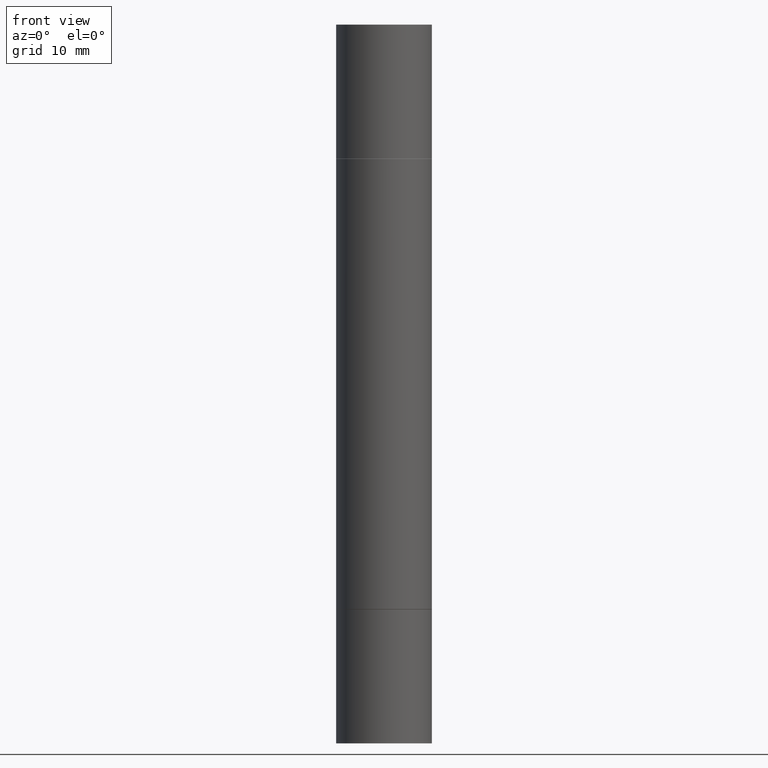
[diagram: clean part render]
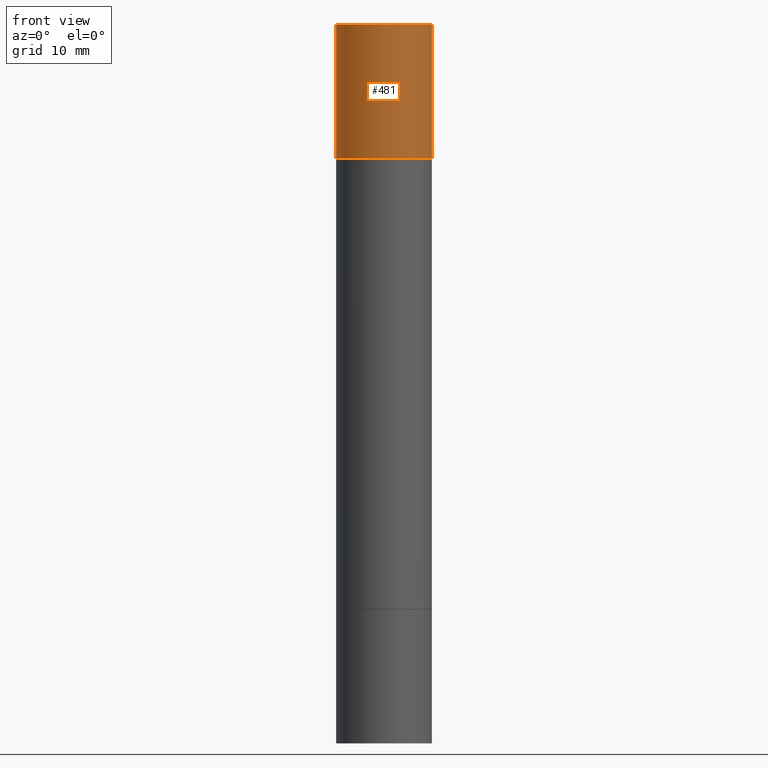
[diagram: same view with one face highlighted and labeled with its STEP entity id]
A machine part, front view. The second image highlights one B-rep face of the part: STEP entity #481.
In plain terms, the highlighted cylindrical surface (partial cylindrical patch) has radius 5 mm, axis along (-0, -0, -1).
Its self-contained STEP definition (entity closure, byte-faithful):
#56 = AXIS2_PLACEMENT_3D ( 'NONE', #639, #304, #207 ) ;
#58 = DIRECTION ( 'NONE',  ( 1.000000000000000000, -6.982962677686267499E-15, 0.000000000000000000 ) ) ;
#97 = CARTESIAN_POINT ( 'NONE',  ( 0.1968500000000000250, -1.372515848155552113E-15, 5.463695987328526437E-16 ) ) ;
#102 = LINE ( 'NONE', #142, #274 ) ;
#110 = VERTEX_POINT ( 'NONE', #193 ) ;
#115 = DIRECTION ( 'NONE',  ( 2.445468806185136597E-29, 3.492890411551752677E-15, 1.000000000000000000 ) ) ;
#142 = CARTESIAN_POINT ( 'NONE',  ( 0.1968500000000000250, -1.168632265538556569E-14, -2.952799999999998981 ) ) ;
#143 = ORIENTED_EDGE ( 'NONE', *, *, #227, .T. ) ;
#159 = FACE_OUTER_BOUND ( 'NONE', #314, .T. ) ;
#161 = ORIENTED_EDGE ( 'NONE', *, *, #424, .F. ) ;
#193 = CARTESIAN_POINT ( 'NONE',  ( -0.1968500000000000250, 3.899287883846529545E-16, 5.463695987328561936E-16 ) ) ;
#207 = DIRECTION ( 'NONE',  ( 1.000000000000000000, -6.982962677686267499E-15, 0.000000000000000000 ) ) ;
#227 = EDGE_CURVE ( 'NONE', #110, #382, #287, .T. ) ;
#233 = CARTESIAN_POINT ( 'NONE',  ( -0.1968500000000000250, -8.961237421421697861E-15, -2.952799999999998981 ) ) ;
#258 = DIRECTION ( 'NONE',  ( 2.445468806185136597E-29, 3.492890411551752677E-15, 1.000000000000000000 ) ) ;
#263 = CIRCLE ( 'NONE', #388, 0.1968500000000000250 ) ;
#270 = CARTESIAN_POINT ( 'NONE',  ( 0.1968500000000000250, -3.297797043002877729E-15, -0.5511999999999995792 ) ) ;
#274 = VECTOR ( 'NONE', #630, 39.37007874015748143 ) ;
#287 = LINE ( 'NONE', #233, #537 ) ;
#304 = DIRECTION ( 'NONE',  ( -2.445468806185136597E-29, -3.492890411551752677E-15, -1.000000000000000000 ) ) ;
#314 = EDGE_LOOP ( 'NONE', ( #161, #143, #602, #577 ) ) ;
#359 = EDGE_CURVE ( 'NONE', #389, #467, #102, .T. ) ;
#382 = VERTEX_POINT ( 'NONE', #573 ) ;
#388 = AXIS2_PLACEMENT_3D ( 'NONE', #533, #115, #58 ) ;
#389 = VERTEX_POINT ( 'NONE', #97 ) ;
#414 = EDGE_CURVE ( 'NONE', #382, #467, #263, .T. ) ;
#424 = EDGE_CURVE ( 'NONE', #110, #389, #560, .T. ) ;
#465 = DIRECTION ( 'NONE',  ( 1.000000000000000000, -6.982962677686265922E-15, 0.000000000000000000 ) ) ;
#467 = VERTEX_POINT ( 'NONE', #270 ) ;
#481 = ADVANCED_FACE ( 'NONE', ( #159 ), #648, .T. ) ;
#497 = AXIS2_PLACEMENT_3D ( 'NONE', #586, #258, #465 ) ;
#533 = CARTESIAN_POINT ( 'NONE',  ( 5.873037884934223228E-29, -1.923200839900336120E-15, -0.5511999999999995792 ) ) ;
#537 = VECTOR ( 'NONE', #610, 39.37007874015748143 ) ;
#560 = CIRCLE ( 'NONE', #497, 0.1968500000000000250 ) ;
#573 = CARTESIAN_POINT ( 'NONE',  ( -0.1968500000000000250, 3.899287883846532010E-16, -0.5511999999999995792 ) ) ;
#577 = ORIENTED_EDGE ( 'NONE', *, *, #359, .F. ) ;
#586 = CARTESIAN_POINT ( 'NONE',  ( 7.220980290903470182E-29, 2.080354946989631982E-18, 5.463695987328526437E-16 ) ) ;
#602 = ORIENTED_EDGE ( 'NONE', *, *, #414, .T. ) ;
#610 = DIRECTION ( 'NONE',  ( -2.445468806185136877E-29, -3.492890411551753071E-15, -1.000000000000000000 ) ) ;
#630 = DIRECTION ( 'NONE',  ( -2.445468806185136877E-29, -3.492890411551753071E-15, -1.000000000000000000 ) ) ;
#639 = CARTESIAN_POINT ( 'NONE',  ( 0.000000000000000000, -1.031172645228302408E-14, -2.952799999999998981 ) ) ;
#648 = CYLINDRICAL_SURFACE ( 'NONE', #56, 0.1968500000000000250 ) ;